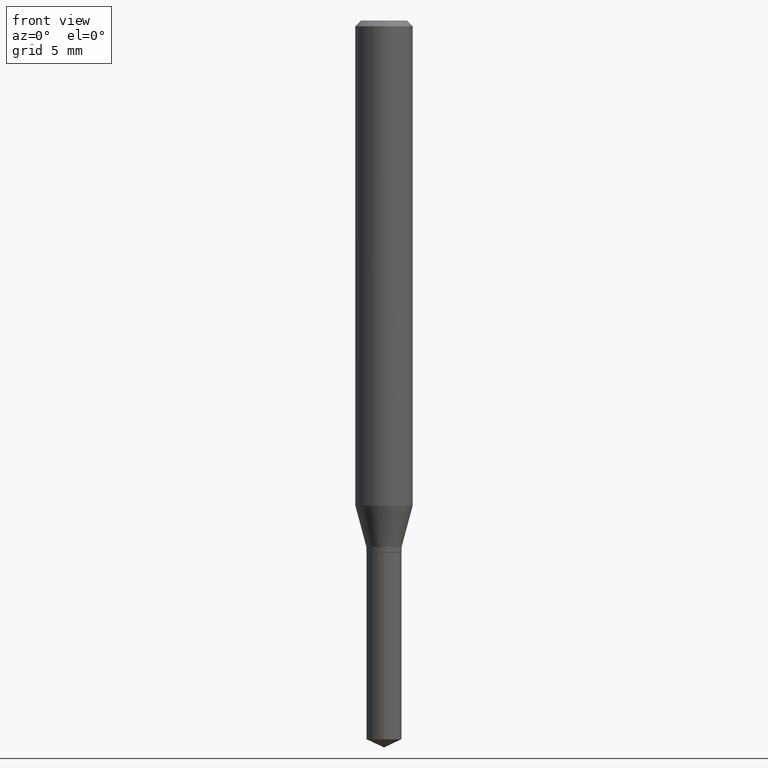
[diagram: clean part render]
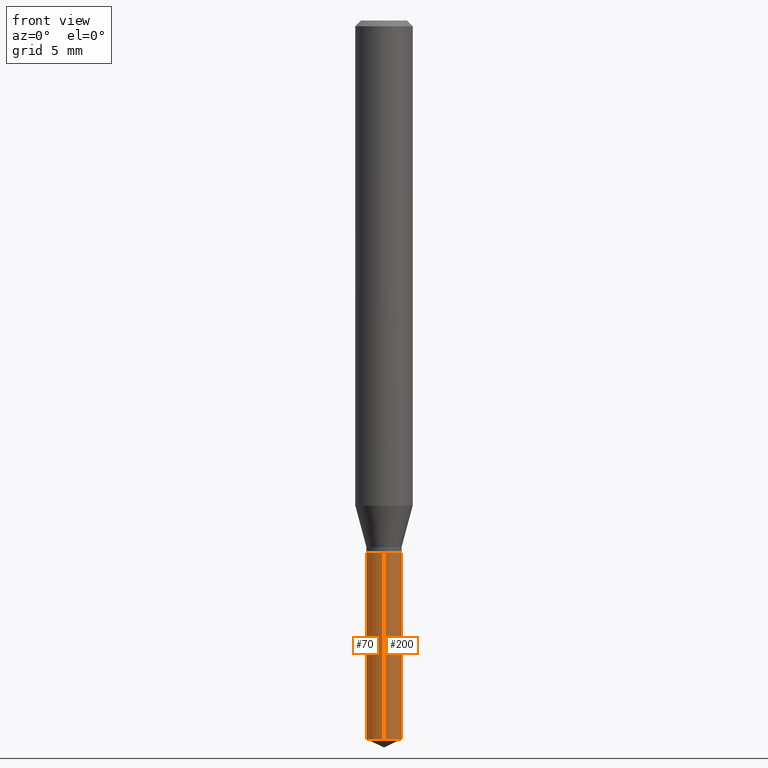
[diagram: same view with one multi-face feature highlighted, each face labeled with its STEP entity id]
A machine part, front view. The highlighted faces form ONE feature: a constant-radius fillet chain: 2 tangent blend faces with common blend radius 0.9195 mm. The faces share edges in the B-rep.
Their STEP definitions:
[1] entity #70 (Cylinder):
#28 = CIRCLE ( 'NONE', #134, 0.03620000000000000301 ) ;
#32 = VERTEX_POINT ( 'NONE', #72 ) ;
#43 = CARTESIAN_POINT ( 'NONE',  ( 2.572164703451925270E-16, 0.03619999999999484741, -1.479219662774789112 ) ) ;
#49 = CARTESIAN_POINT ( 'NONE',  ( 2.676565608369631794E-29, -3.821426325363822773E-15, -1.094499999999999806 ) ) ;
#51 = DIRECTION ( 'NONE',  ( -6.982962677686265922E-15, -1.000000000000000000, 0.000000000000000000 ) ) ;
#65 = VERTEX_POINT ( 'NONE', #283 ) ;
#66 = CARTESIAN_POINT ( 'NONE',  ( 2.676565608369631794E-29, -3.821426325363822773E-15, -1.094499999999999806 ) ) ;
#69 = EDGE_LOOP ( 'NONE', ( #339, #370, #194, #95 ) ) ;
#70 = ADVANCED_FACE ( 'NONE', ( #318 ), #390, .T. ) ;
#72 = CARTESIAN_POINT ( 'NONE',  ( -2.527832489322067476E-16, -0.03620000000000517942, -1.479219662774789112 ) ) ;
#95 = ORIENTED_EDGE ( 'NONE', *, *, #419, .F. ) ;
#134 = AXIS2_PLACEMENT_3D ( 'NONE', #205, #324, #51 ) ;
#143 = DIRECTION ( 'NONE',  ( -6.982962677686265922E-15, -1.000000000000000000, 3.773270709481026305E-15 ) ) ;
#160 = DIRECTION ( 'NONE',  ( -6.982962677686265922E-15, -1.000000000000000000, 3.773270709481026305E-15 ) ) ;
#170 = VERTEX_POINT ( 'NONE', #43 ) ;
#194 = ORIENTED_EDGE ( 'NONE', *, *, #320, .T. ) ;
#205 = CARTESIAN_POINT ( 'NONE',  ( 3.617386084645487134E-29, -5.164667072690838568E-15, -1.479219662774789112 ) ) ;
#208 = LINE ( 'NONE', #402, #243 ) ;
#212 = DIRECTION ( 'NONE',  ( -2.445470214571802396E-29, 3.491479321953280158E-15, 1.000000000000000000 ) ) ;
#213 = VERTEX_POINT ( 'NONE', #423 ) ;
#221 = LINE ( 'NONE', #291, #319 ) ;
#243 = VECTOR ( 'NONE', #212, 39.37007874015748143 ) ;
#256 = EDGE_CURVE ( 'NONE', #170, #32, #28, .T. ) ;
#283 = CARTESIAN_POINT ( 'NONE',  ( -2.527832489322161153E-16, -0.03620000000000382634, -1.094499999999999806 ) ) ;
#291 = CARTESIAN_POINT ( 'NONE',  ( 2.572164703451830113E-16, 0.03619999999999618662, -1.094500000000000028 ) ) ;
#318 = FACE_OUTER_BOUND ( 'NONE', #69, .T. ) ;
#319 = VECTOR ( 'NONE', #435, 39.37007874015748143 ) ;
#320 = EDGE_CURVE ( 'NONE', #32, #65, #208, .T. ) ;
#324 = DIRECTION ( 'NONE',  ( -2.445470214571802116E-29, 3.491479321953280158E-15, 1.000000000000000000 ) ) ;
#326 = CIRCLE ( 'NONE', #381, 0.03620000000000000301 ) ;
#339 = ORIENTED_EDGE ( 'NONE', *, *, #354, .F. ) ;
#354 = EDGE_CURVE ( 'NONE', #170, #213, #221, .T. ) ;
#370 = ORIENTED_EDGE ( 'NONE', *, *, #256, .T. ) ;
#379 = DIRECTION ( 'NONE',  ( -2.445470214571802116E-29, 3.491479321953280158E-15, 1.000000000000000000 ) ) ;
#381 = AXIS2_PLACEMENT_3D ( 'NONE', #66, #379, #143 ) ;
#390 = CYLINDRICAL_SURFACE ( 'NONE', #396, 0.03620000000000000301 ) ;
#396 = AXIS2_PLACEMENT_3D ( 'NONE', #49, #465, #160 ) ;
#402 = CARTESIAN_POINT ( 'NONE',  ( -2.527832489322161153E-16, -0.03620000000000382634, -1.094499999999999806 ) ) ;
#419 = EDGE_CURVE ( 'NONE', #213, #65, #326, .T. ) ;
#423 = CARTESIAN_POINT ( 'NONE',  ( 2.572164703451924284E-16, 0.03619999999999617968, -1.094500000000000028 ) ) ;
#435 = DIRECTION ( 'NONE',  ( -2.445470214571802396E-29, 3.491479321953280158E-15, 1.000000000000000000 ) ) ;
#465 = DIRECTION ( 'NONE',  ( -2.445470214571802116E-29, 3.491479321953280158E-15, 1.000000000000000000 ) ) ;
[2] entity #200 (Cylinder):
#2 = DIRECTION ( 'NONE',  ( -2.445470214571802116E-29, 3.491479321953280158E-15, 1.000000000000000000 ) ) ;
#32 = VERTEX_POINT ( 'NONE', #72 ) ;
#43 = CARTESIAN_POINT ( 'NONE',  ( 2.572164703451925270E-16, 0.03619999999999484741, -1.479219662774789112 ) ) ;
#65 = VERTEX_POINT ( 'NONE', #283 ) ;
#68 = ORIENTED_EDGE ( 'NONE', *, *, #354, .T. ) ;
#72 = CARTESIAN_POINT ( 'NONE',  ( -2.527832489322067476E-16, -0.03620000000000517942, -1.479219662774789112 ) ) ;
#107 = DIRECTION ( 'NONE',  ( -2.445470214571802116E-29, 3.491479321953280158E-15, 1.000000000000000000 ) ) ;
#115 = EDGE_LOOP ( 'NONE', ( #331, #68, #451, #413 ) ) ;
#121 = CIRCLE ( 'NONE', #199, 0.03620000000000000301 ) ;
#152 = DIRECTION ( 'NONE',  ( -6.982962677686265922E-15, -1.000000000000000000, 0.000000000000000000 ) ) ;
#154 = EDGE_CURVE ( 'NONE', #65, #213, #325, .T. ) ;
#165 = CARTESIAN_POINT ( 'NONE',  ( 2.676565608369631794E-29, -3.821426325363822773E-15, -1.094499999999999806 ) ) ;
#170 = VERTEX_POINT ( 'NONE', #43 ) ;
#171 = AXIS2_PLACEMENT_3D ( 'NONE', #459, #424, #313 ) ;
#199 = AXIS2_PLACEMENT_3D ( 'NONE', #249, #107, #152 ) ;
#200 = ADVANCED_FACE ( 'NONE', ( #246 ), #350, .T. ) ;
#208 = LINE ( 'NONE', #402, #243 ) ;
#212 = DIRECTION ( 'NONE',  ( -2.445470214571802396E-29, 3.491479321953280158E-15, 1.000000000000000000 ) ) ;
#213 = VERTEX_POINT ( 'NONE', #423 ) ;
#221 = LINE ( 'NONE', #291, #319 ) ;
#243 = VECTOR ( 'NONE', #212, 39.37007874015748143 ) ;
#246 = FACE_OUTER_BOUND ( 'NONE', #115, .T. ) ;
#249 = CARTESIAN_POINT ( 'NONE',  ( 3.617386084645487134E-29, -5.164667072690838568E-15, -1.479219662774789112 ) ) ;
#283 = CARTESIAN_POINT ( 'NONE',  ( -2.527832489322161153E-16, -0.03620000000000382634, -1.094499999999999806 ) ) ;
#291 = CARTESIAN_POINT ( 'NONE',  ( 2.572164703451830113E-16, 0.03619999999999618662, -1.094500000000000028 ) ) ;
#313 = DIRECTION ( 'NONE',  ( -6.982962677686265922E-15, -1.000000000000000000, 3.773270709481026305E-15 ) ) ;
#319 = VECTOR ( 'NONE', #435, 39.37007874015748143 ) ;
#320 = EDGE_CURVE ( 'NONE', #32, #65, #208, .T. ) ;
#325 = CIRCLE ( 'NONE', #343, 0.03620000000000000301 ) ;
#331 = ORIENTED_EDGE ( 'NONE', *, *, #411, .T. ) ;
#343 = AXIS2_PLACEMENT_3D ( 'NONE', #165, #2, #393 ) ;
#350 = CYLINDRICAL_SURFACE ( 'NONE', #171, 0.03620000000000000301 ) ;
#354 = EDGE_CURVE ( 'NONE', #170, #213, #221, .T. ) ;
#393 = DIRECTION ( 'NONE',  ( -6.982962677686265922E-15, -1.000000000000000000, 3.773270709481026305E-15 ) ) ;
#402 = CARTESIAN_POINT ( 'NONE',  ( -2.527832489322161153E-16, -0.03620000000000382634, -1.094499999999999806 ) ) ;
#411 = EDGE_CURVE ( 'NONE', #32, #170, #121, .T. ) ;
#413 = ORIENTED_EDGE ( 'NONE', *, *, #320, .F. ) ;
#423 = CARTESIAN_POINT ( 'NONE',  ( 2.572164703451924284E-16, 0.03619999999999617968, -1.094500000000000028 ) ) ;
#424 = DIRECTION ( 'NONE',  ( -2.445470214571802116E-29, 3.491479321953280158E-15, 1.000000000000000000 ) ) ;
#435 = DIRECTION ( 'NONE',  ( -2.445470214571802396E-29, 3.491479321953280158E-15, 1.000000000000000000 ) ) ;
#451 = ORIENTED_EDGE ( 'NONE', *, *, #154, .F. ) ;
#459 = CARTESIAN_POINT ( 'NONE',  ( 2.676565608369631794E-29, -3.821426325363822773E-15, -1.094499999999999806 ) ) ;